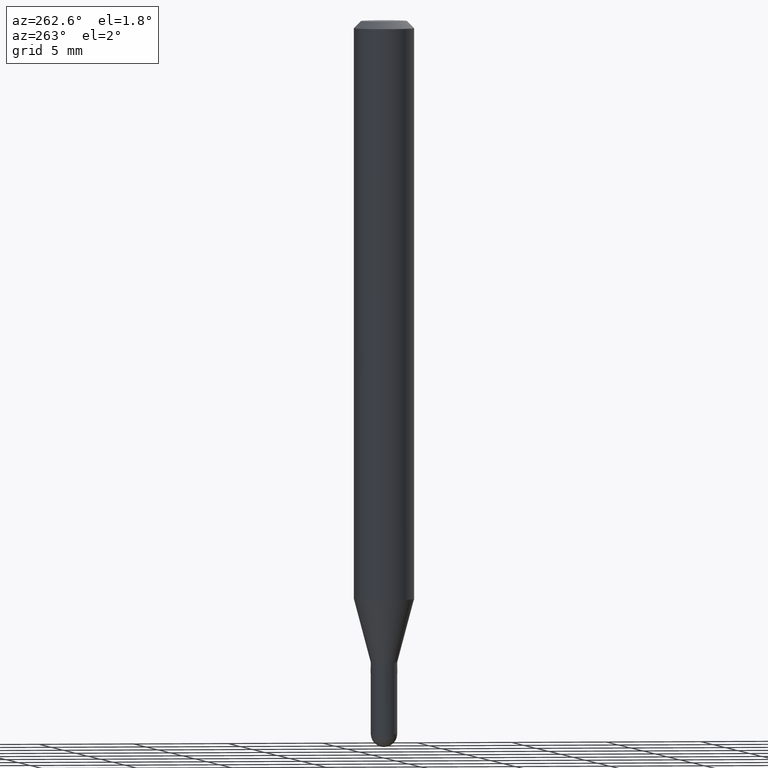
[diagram: clean part render]
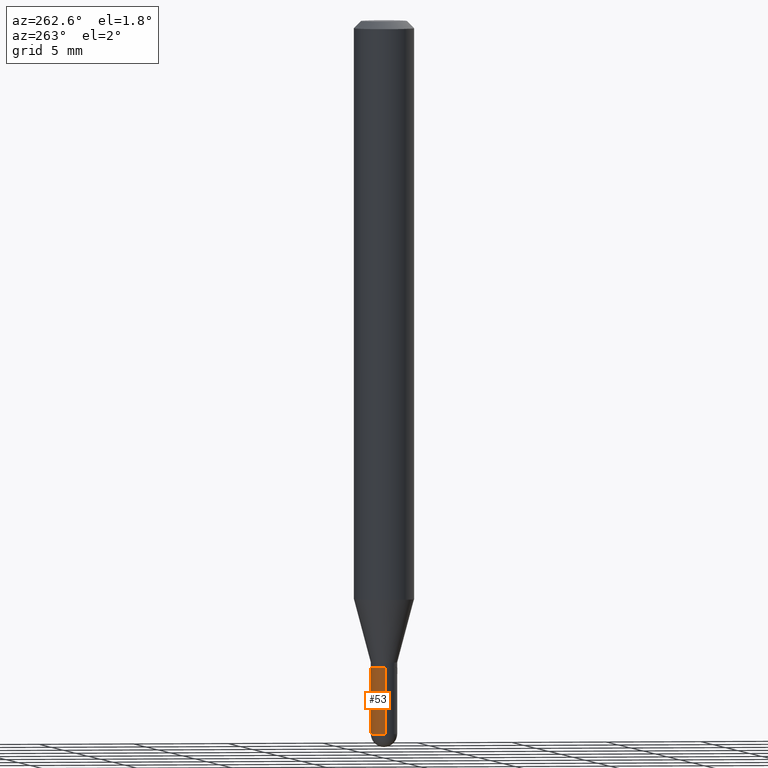
[diagram: same view with one face highlighted and labeled with its STEP entity id]
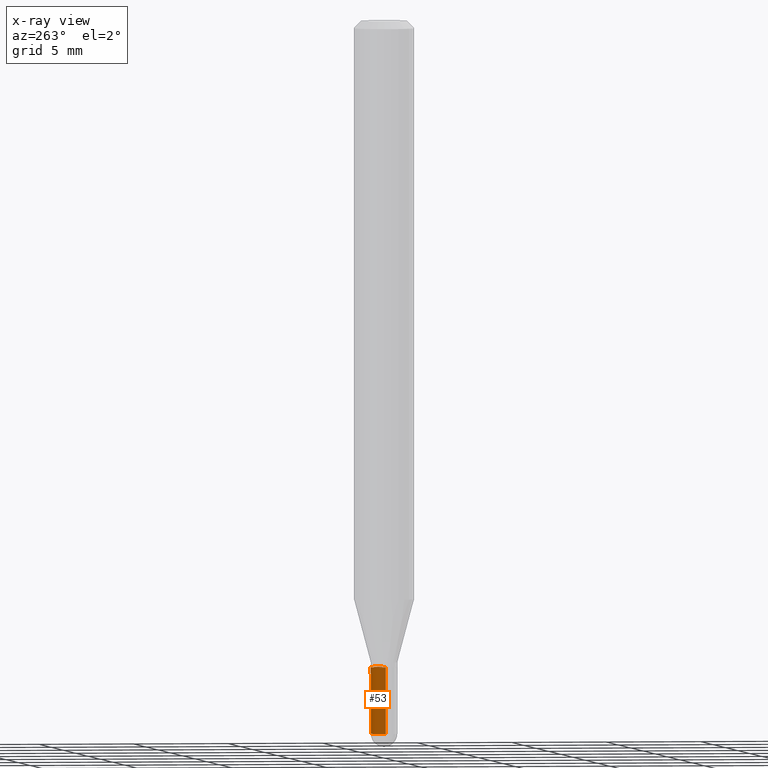
[diagram: x-ray of the same camera — body ghosted, the highlighted face saturated]
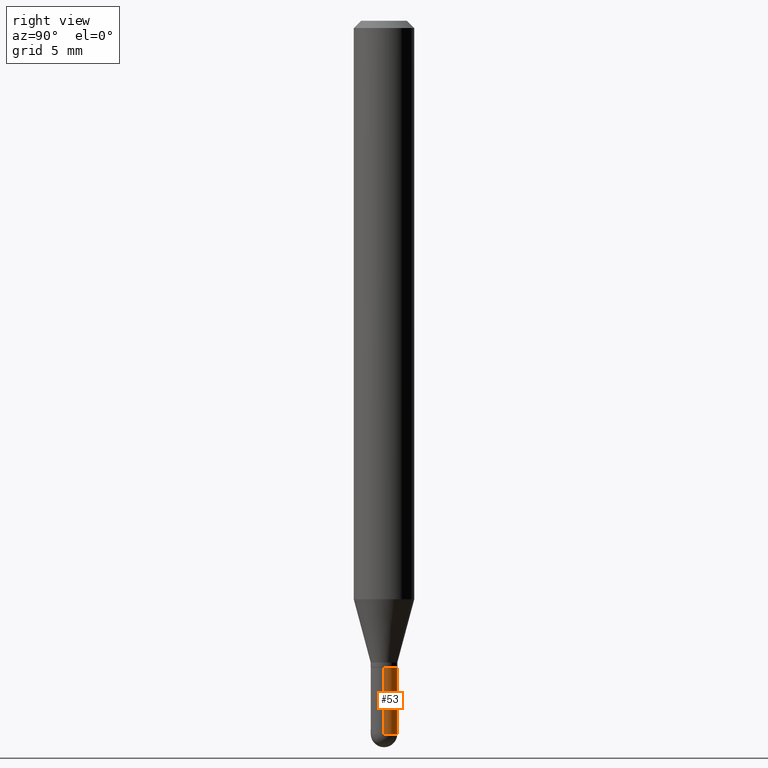
[diagram: same view with one face highlighted and labeled with its STEP entity id]
A machine part, auxiliary view. The second image highlights one B-rep face of the part: STEP entity #53.
The next image is the same camera in x-ray: the body ghosted, the highlighted face saturated — about 0% of this face is hidden behind the body in this view.
A second angle (right view) of the same face is appended — the face is thin or edge-on in the first view.
In plain terms, the highlighted cylindrical surface (edge-blend (fillet) strip) has radius 0.6985 mm, axis along (-0, 0, 1).
Its self-contained STEP definition (entity closure, byte-faithful):
#12 = ORIENTED_EDGE ( 'NONE', *, *, #151, .F. ) ;
#16 = VERTEX_POINT ( 'NONE', #313 ) ;
#32 = DIRECTION ( 'NONE',  ( -2.445468806185136597E-29, 3.491481338843145583E-15, 1.000000000000000000 ) ) ;
#40 = DIRECTION ( 'NONE',  ( 1.000000000000000000, -6.982962677686277755E-15, 0.000000000000000000 ) ) ;
#46 = CIRCLE ( 'NONE', #72, 0.02750000000000000014 ) ;
#47 = DIRECTION ( 'NONE',  ( 1.000000000000000000, -6.982962677686277755E-15, 0.000000000000000000 ) ) ;
#53 = ADVANCED_FACE ( 'NONE', ( #342 ), #347, .T. ) ;
#61 = VERTEX_POINT ( 'NONE', #308 ) ;
#65 = ORIENTED_EDGE ( 'NONE', *, *, #245, .T. ) ;
#66 = CARTESIAN_POINT ( 'NONE',  ( -0.02750000000000000708, 1.953992523340276014E-16, -1.352707149820099356E-30 ) ) ;
#71 = DIRECTION ( 'NONE',  ( 1.000000000000000000, -6.982962677686265922E-15, 4.876176775795935232E-29 ) ) ;
#72 = AXIS2_PLACEMENT_3D ( 'NONE', #510, #210, #389 ) ;
#76 = ORIENTED_EDGE ( 'NONE', *, *, #194, .F. ) ;
#89 = AXIS2_PLACEMENT_3D ( 'NONE', #282, #410, #47 ) ;
#98 = CARTESIAN_POINT ( 'NONE',  ( 0.02750000000000000014, -4.853159060991972403E-15, -1.335000000000000187 ) ) ;
#137 = LINE ( 'NONE', #454, #507 ) ;
#151 = EDGE_CURVE ( 'NONE', #16, #301, #137, .T. ) ;
#167 = VERTEX_POINT ( 'NONE', #251 ) ;
#179 = DIRECTION ( 'NONE',  ( -2.445468806185136877E-29, 3.491481338843145188E-15, 1.000000000000000000 ) ) ;
#181 = VERTEX_POINT ( 'NONE', #314 ) ;
#194 = EDGE_CURVE ( 'NONE', #301, #181, #46, .T. ) ;
#205 = AXIS2_PLACEMENT_3D ( 'NONE', #415, #32, #71 ) ;
#210 = DIRECTION ( 'NONE',  ( -2.445468806185136597E-29, 3.491481338843145583E-15, 1.000000000000000000 ) ) ;
#213 = AXIS2_PLACEMENT_3D ( 'NONE', #506, #471, #40 ) ;
#227 = DIRECTION ( 'NONE',  ( -2.445468806185136877E-29, 3.491481338843145188E-15, 1.000000000000000000 ) ) ;
#245 = EDGE_CURVE ( 'NONE', #16, #61, #508, .T. ) ;
#250 = CIRCLE ( 'NONE', #89, 0.02750000000000000708 ) ;
#251 = CARTESIAN_POINT ( 'NONE',  ( -0.02750000000000000708, -4.705767677067038393E-15, -1.472500000000000142 ) ) ;
#253 = ORIENTED_EDGE ( 'NONE', *, *, #271, .T. ) ;
#265 = LINE ( 'NONE', #66, #292 ) ;
#271 = EDGE_CURVE ( 'NONE', #61, #167, #250, .T. ) ;
#282 = CARTESIAN_POINT ( 'NONE',  ( 3.600952817107613706E-29, -5.141206271446532325E-15, -1.472500000000000142 ) ) ;
#292 = VECTOR ( 'NONE', #227, 39.37007874015748143 ) ;
#298 = ORIENTED_EDGE ( 'NONE', *, *, #399, .T. ) ;
#301 = VERTEX_POINT ( 'NONE', #98 ) ;
#308 = CARTESIAN_POINT ( 'NONE',  ( 1.920314736364081883E-16, 0.02749999999999484107, -1.472500000000000142 ) ) ;
#313 = CARTESIAN_POINT ( 'NONE',  ( 0.02750000000000000708, -5.093198403037438216E-15, -1.472500000000000142 ) ) ;
#314 = CARTESIAN_POINT ( 'NONE',  ( -0.02750000000000000014, -4.705767677067038393E-15, -1.335000000000000187 ) ) ;
#342 = FACE_OUTER_BOUND ( 'NONE', #370, .T. ) ;
#347 = CYLINDRICAL_SURFACE ( 'NONE', #205, 0.02750000000000000708 ) ;
#370 = EDGE_LOOP ( 'NONE', ( #253, #298, #76, #12, #65 ) ) ;
#389 = DIRECTION ( 'NONE',  ( 1.000000000000000000, -6.982962677686279332E-15, 0.000000000000000000 ) ) ;
#399 = EDGE_CURVE ( 'NONE', #167, #181, #265, .T. ) ;
#410 = DIRECTION ( 'NONE',  ( -2.445468806185136597E-29, 3.491481338843145583E-15, 1.000000000000000000 ) ) ;
#415 = CARTESIAN_POINT ( 'NONE',  ( 0.000000000000000000, 0.000000000000000000, 0.000000000000000000 ) ) ;
#454 = CARTESIAN_POINT ( 'NONE',  ( 0.02750000000000000708, -1.920314736363723691E-16, 1.340948613343882588E-30 ) ) ;
#471 = DIRECTION ( 'NONE',  ( -2.445468806185136597E-29, 3.491481338843145583E-15, 1.000000000000000000 ) ) ;
#506 = CARTESIAN_POINT ( 'NONE',  ( 3.600952817107613706E-29, -5.141206271446532325E-15, -1.472500000000000142 ) ) ;
#507 = VECTOR ( 'NONE', #179, 39.37007874015748143 ) ;
#508 = CIRCLE ( 'NONE', #213, 0.02750000000000000708 ) ;
#510 = CARTESIAN_POINT ( 'NONE',  ( 3.264700856257157760E-29, -4.661127587355599122E-15, -1.335000000000000187 ) ) ;